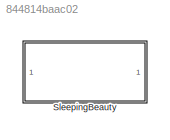
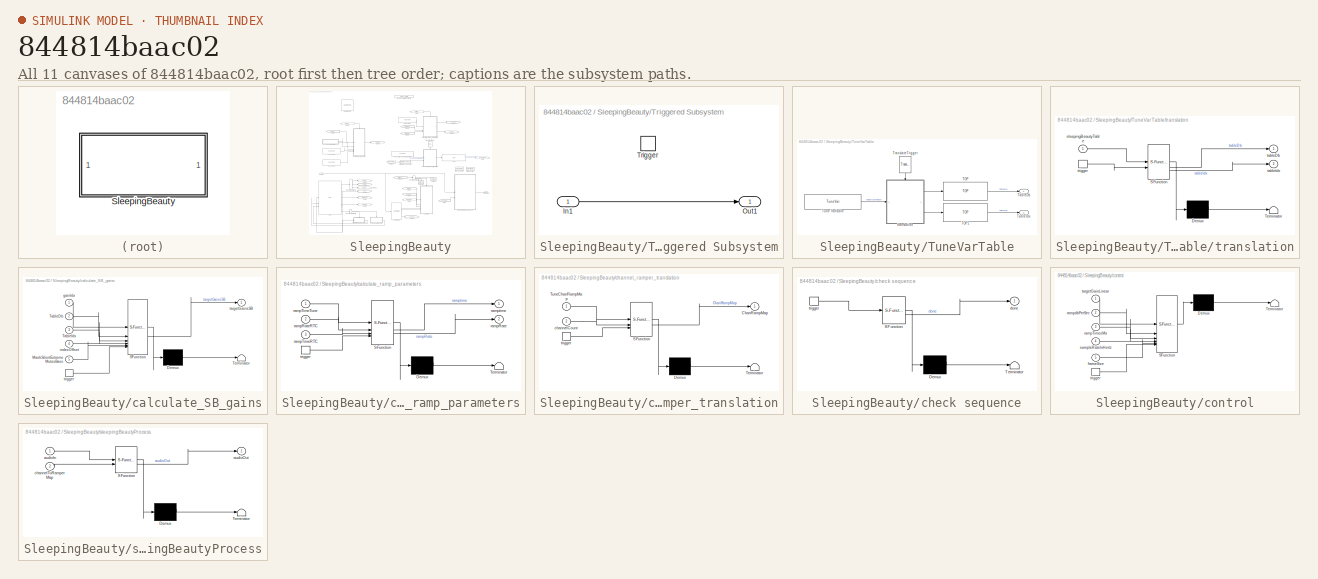
[diagram: thumbnail index - all 11 canvases of the model, root first then tree order]
MODEL slx_844814baac02
KIND library
CONFIG AbsTol = auto
CONFIG EnableMultiTasking = off
CONFIG FixedStep = auto
CONFIG MaxStep = auto
CONFIG MinStep = auto
CONFIG RelTol = 1e-3
CONFIG SampleTimeConstraint = Unconstrained
CONFIG SolverName = VariableStepAuto
CONFIG StartTime = 0.0
CONFIG StopTime = 10.0
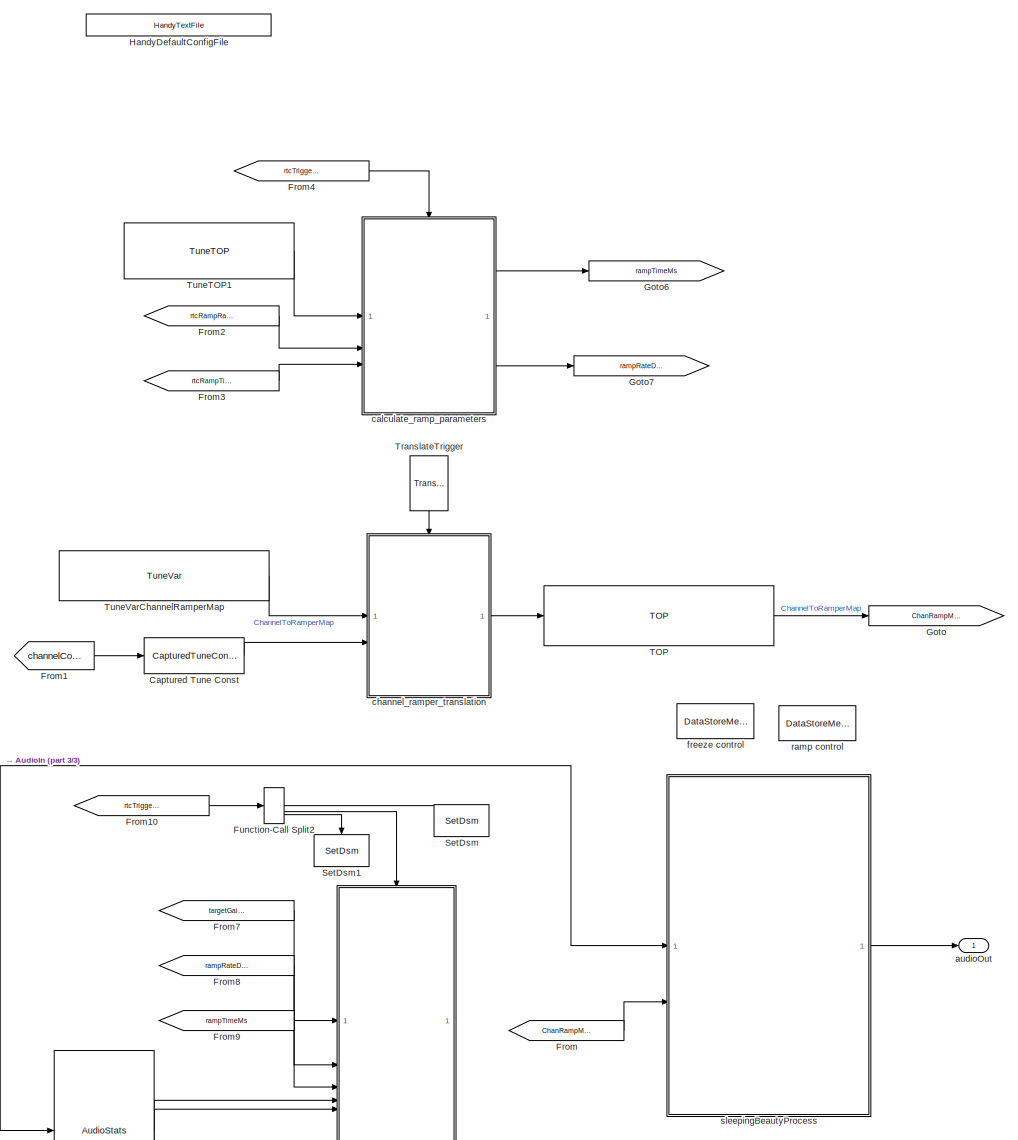
[diagram: SleepingBeauty - part 1/3, right side, full height]
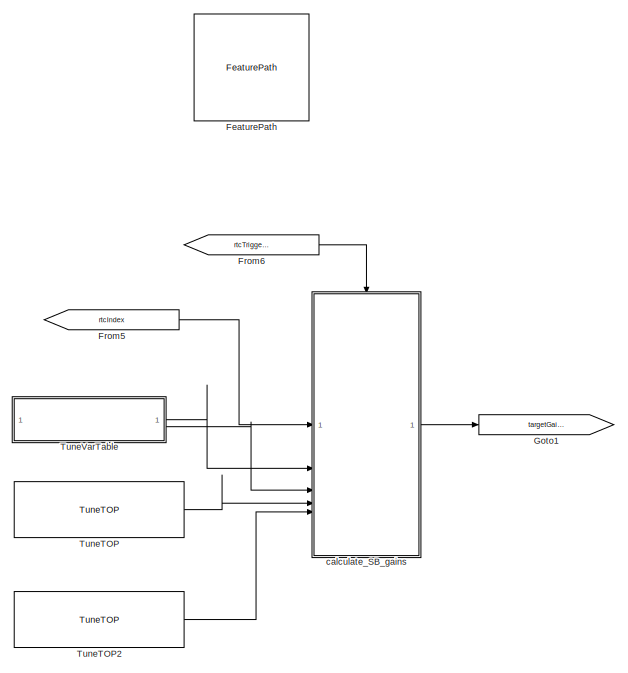
[diagram: SleepingBeauty - part 2/3, top left region]
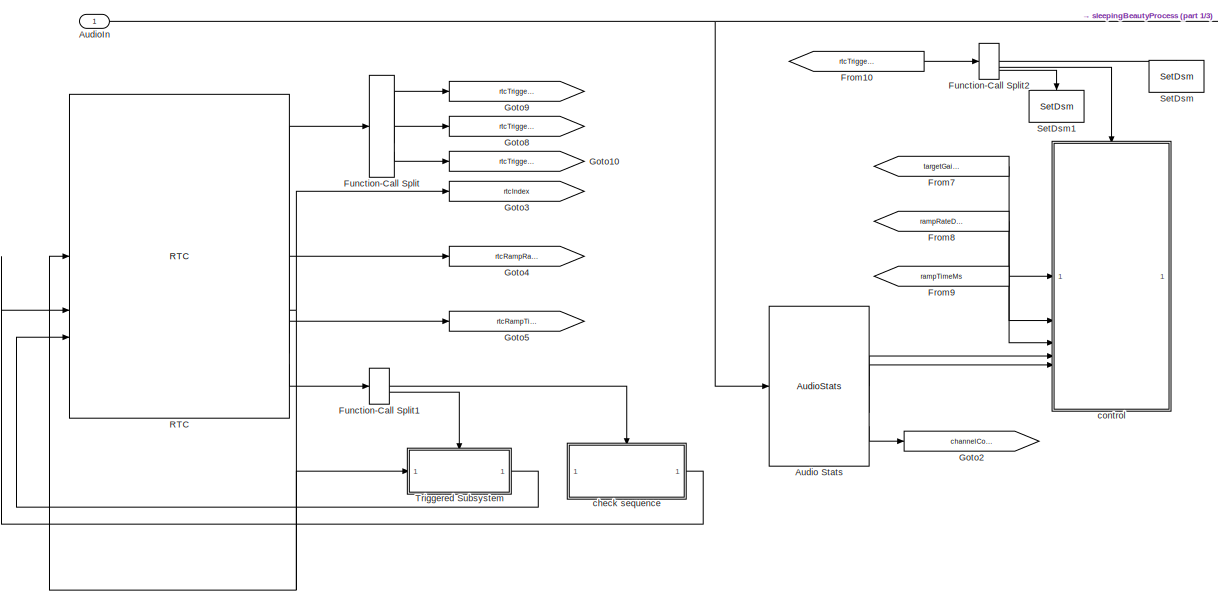
[diagram: SleepingBeauty - part 3/3, bottom center region]
BLOCK [SubSystem] SleepingBeauty
BLOCK [Reference] SleepingBeauty/Audio Stats  REF=AudioStats/AudioStats
  SourceBlock = AudioStats/AudioStats
  SourceProductName = Bose Talaria
  SourceType = Talaria Audio Statistics
BLOCK [Inport] SleepingBeauty/AudioIn
BLOCK [Reference] SleepingBeauty/Captured Tune Const  REF=TuneVar/CapturedTuneConst
  SourceBlock = TuneVar/CapturedTuneConst
  SourceProductName = Bose Talaria
  SourceType = Talaria Captured Constant
BLOCK [Reference] SleepingBeauty/FeaturePath  REF=FeaturePath/FeaturePath
  SourceBlock = FeaturePath/FeaturePath
  SourceProductName = Bose Talaria
  SourceType = Talaria Feature Path
BLOCK [From] SleepingBeauty/From
  GotoTag = ChanRampMap
BLOCK [From] SleepingBeauty/From1
  GotoTag = channelCount
BLOCK [From] SleepingBeauty/From10
  GotoTag = rtcTriggerControl
BLOCK [From] SleepingBeauty/From2
  GotoTag = rtcRampRateDbPerSecond
BLOCK [From] SleepingBeauty/From3
  GotoTag = rtcRampTimeMs
BLOCK [From] SleepingBeauty/From4
  GotoTag = rtcTriggerRamp
BLOCK [From] SleepingBeauty/From5
  GotoTag = rtcIndex
BLOCK [From] SleepingBeauty/From6
  GotoTag = rtcTriggerIndex
BLOCK [From] SleepingBeauty/From7
  GotoTag = targetGainsSB
BLOCK [From] SleepingBeauty/From8
  GotoTag = rampRateDbPerSecond
BLOCK [From] SleepingBeauty/From9
  GotoTag = rampTimeMs
BLOCK [FunctionCallSplit] SleepingBeauty/Function-Call Split
  IconShape = distinctive
  NumOutputPorts = 3
  OutputPortLayout = default
BLOCK [FunctionCallSplit] SleepingBeauty/Function-Call Split1
  IconShape = distinctive
  NumOutputPorts = 2
  OutputPortLayout = default
BLOCK [FunctionCallSplit] SleepingBeauty/Function-Call Split2
  IconShape = distinctive
  NumOutputPorts = 3
  OutputPortLayout = default
BLOCK [Goto] SleepingBeauty/Goto
  GotoTag = ChanRampMap
BLOCK [Goto] SleepingBeauty/Goto1
  GotoTag = targetGainsSB
BLOCK [Goto] SleepingBeauty/Goto10
  GotoTag = rtcTriggerControl
BLOCK [Goto] SleepingBeauty/Goto2
  GotoTag = channelCount
BLOCK [Goto] SleepingBeauty/Goto3
  GotoTag = rtcIndex
BLOCK [Goto] SleepingBeauty/Goto4
  GotoTag = rtcRampRateDbPerSecond
BLOCK [Goto] SleepingBeauty/Goto5
  GotoTag = rtcRampTimeMs
BLOCK [Goto] SleepingBeauty/Goto6
  GotoTag = rampTimeMs
BLOCK [Goto] SleepingBeauty/Goto7
  GotoTag = rampRateDbPerSecond
BLOCK [Goto] SleepingBeauty/Goto8
  GotoTag = rtcTriggerRamp
BLOCK [Goto] SleepingBeauty/Goto9
  GotoTag = rtcTriggerIndex
BLOCK [Reference] SleepingBeauty/HandyDefaultConfigFile  REF=HandyTextFile/HandyTextFile
  SourceBlock = HandyTextFile/HandyTextFile
  SourceProductName = Bose Talaria
  SourceType = Talaria Handy Text File
BLOCK [Reference] SleepingBeauty/RTC  REF=RTC/RTC
  SourceBlock = RTC/RTC
  SourceProductName = Bose Talaria
  SourceType = Talaria RTC Receive
BLOCK [Reference] SleepingBeauty/SetDsm  REF=SetDsm/SetDsm
  SourceBlock = SetDsm/SetDsm
  SourceProductName = Bose Talaria
  SourceType = Talaria Set DSM
BLOCK [Reference] SleepingBeauty/SetDsm1  REF=SetDsm/SetDsm
  SourceBlock = SetDsm/SetDsm
  SourceProductName = Bose Talaria
  SourceType = Talaria Set DSM
BLOCK [Reference] SleepingBeauty/TOP  REF=TOP/TOP
  SourceBlock = TOP/TOP
  SourceProductName = Bose Talaria
  SourceType = Talaria Target Overlay Parameter
BLOCK [Reference] SleepingBeauty/TranslateTrigger  REF=TuneVar/TranslateTrigger
  NameLocation = left
  SourceBlock = TuneVar/TranslateTrigger
  SourceProductName = Bose Talaria
  SourceType = Talaria Translate Trigger
BLOCK [SubSystem] SleepingBeauty/Triggered Subsystem
  TreatAsAtomicUnit = on
BLOCK [Inport] SleepingBeauty/Triggered Subsystem/In1
BLOCK [Outport] SleepingBeauty/Triggered Subsystem/Out1
BLOCK [TriggerPort] SleepingBeauty/Triggered Subsystem/Trigger
  StatesWhenEnabling = held
  TriggerType = function-call
  VariantControl = Variant
BLOCK [Reference] SleepingBeauty/TuneTOP  REF=TuneVar/TuneTOP
  Description = Defines the index at which the index is at the center, i.e. neither towards the left nor the right sides.
  SourceBlock = TuneVar/TuneTOP
  SourceProductName = Bose Talaria
  SourceType = Talaria Trivial Tune TOP
BLOCK [Reference] SleepingBeauty/TuneTOP1  REF=TuneVar/TuneTOP
  SourceBlock = TuneVar/TuneTOP
  SourceProductName = Bose Talaria
  SourceType = Talaria Trivial Tune TOP
BLOCK [Reference] SleepingBeauty/TuneTOP2  REF=TuneVar/TuneTOP
  Description = Defines the index at which the index is at the center, i.e. neither towards the left nor the right sides.
  SourceBlock = TuneVar/TuneTOP
  SourceProductName = Bose Talaria
  SourceType = Talaria Trivial Tune TOP
BLOCK [Reference] SleepingBeauty/TuneVarChannelRamperMap  REF=TuneVar/TuneVar
  SourceBlock = TuneVar/TuneVar
  SourceProductName = Bose Talaria
  SourceType = Talaria Tune Variable
BLOCK [SubSystem] SleepingBeauty/TuneVarTable
BLOCK [Reference] SleepingBeauty/TuneVarTable/TOP  REF=TOP/TOP
  SourceBlock = TOP/TOP
  SourceProductName = Bose Talaria
  SourceType = Talaria Target Overlay Parameter
BLOCK [Reference] SleepingBeauty/TuneVarTable/TOP1  REF=TOP/TOP
  SourceBlock = TOP/TOP
  SourceProductName = Bose Talaria
  SourceType = Talaria Target Overlay Parameter
BLOCK [Outport] SleepingBeauty/TuneVarTable/TableDb
BLOCK [Outport] SleepingBeauty/TuneVarTable/TableIdx
  Port = 2
BLOCK [Reference] SleepingBeauty/TuneVarTable/TranslateTrigger  REF=TuneVar/TranslateTrigger
  NameLocation = left
  SourceBlock = TuneVar/TranslateTrigger
  SourceProductName = Bose Talaria
  SourceType = Talaria Translate Trigger
BLOCK [Reference] SleepingBeauty/TuneVarTable/Tune Variable  REF=TuneVar/TuneVar
  SourceBlock = TuneVar/TuneVar
  SourceProductName = Bose Talaria
  SourceType = Talaria Tune Variable
BLOCK [SubSystem] SleepingBeauty/TuneVarTable/translation
  ErrorFcn = Stateflow.Translate.translate
  PermitHierarchicalResolution = ExplicitOnly
  SFBlockType = MATLAB Function
  TreatAsAtomicUnit = on
BLOCK [Demux] SleepingBeauty/TuneVarTable/translation/ Demux 
  Outputs = 1
BLOCK [S-Function] SleepingBeauty/TuneVarTable/translation/ SFunction 
  EnableBusSupport = off
  FunctionName = sf_sfun
  PortCounts = [2 3]
  SFcnIsStateOwnerBlock = off
  SFunctionDeploymentMode = off
  Tag = Stateflow S-Function 1
BLOCK [Terminator] SleepingBeauty/TuneVarTable/translation/ Terminator 
BLOCK [Inport] SleepingBeauty/TuneVarTable/translation/sleepingBeautyTable
BLOCK [Outport] SleepingBeauty/TuneVarTable/translation/tableDb
  VectorParamsAs1DForOutWhenUnconnected = off
BLOCK [Outport] SleepingBeauty/TuneVarTable/translation/tableIdx
  Port = 2
BLOCK [TriggerPort] SleepingBeauty/TuneVarTable/translation/trigger
  ShowOutputPort = on
  StatesWhenEnabling = held
  TriggerType = function-call
  VariantControl = Variant
BLOCK [Outport] SleepingBeauty/audioOut
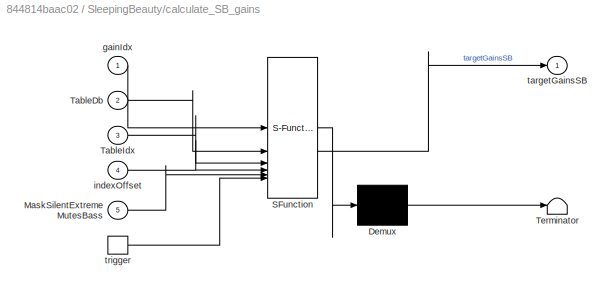
BLOCK [SubSystem] SleepingBeauty/calculate_SB_gains
  ErrorFcn = Stateflow.Translate.translate
  PermitHierarchicalResolution = ExplicitOnly
  SFBlockType = MATLAB Function
  TreatAsAtomicUnit = on
BLOCK [Demux] SleepingBeauty/calculate_SB_gains/ Demux 
  Outputs = 1
BLOCK [S-Function] SleepingBeauty/calculate_SB_gains/ SFunction 
  EnableBusSupport = off
  FunctionName = sf_sfun
  Parameters = MaskNumRampers
  PortCounts = [6 2]
  SFcnIsStateOwnerBlock = off
  SFunctionDeploymentMode = off
  Tag = Stateflow S-Function 3
BLOCK [Terminator] SleepingBeauty/calculate_SB_gains/ Terminator 
BLOCK [Inport] SleepingBeauty/calculate_SB_gains/MaskSilentExtremeMutesBass
  Port = 5
BLOCK [Inport] SleepingBeauty/calculate_SB_gains/TableDb
  Port = 2
BLOCK [Inport] SleepingBeauty/calculate_SB_gains/TableIdx
  Port = 3
BLOCK [Inport] SleepingBeauty/calculate_SB_gains/gainIdx
BLOCK [Inport] SleepingBeauty/calculate_SB_gains/indexOffset
  Port = 4
BLOCK [Outport] SleepingBeauty/calculate_SB_gains/targetGainsSB
BLOCK [TriggerPort] SleepingBeauty/calculate_SB_gains/trigger
  ShowOutputPort = on
  StatesWhenEnabling = held
  TriggerType = function-call
  VariantControl = (inherit)
BLOCK [SubSystem] SleepingBeauty/calculate_ramp_parameters
  ErrorFcn = Stateflow.Translate.translate
  PermitHierarchicalResolution = ExplicitOnly
  SFBlockType = MATLAB Function
  TreatAsAtomicUnit = on
BLOCK [Demux] SleepingBeauty/calculate_ramp_parameters/ Demux 
  Outputs = 1
BLOCK [S-Function] SleepingBeauty/calculate_ramp_parameters/ SFunction 
  EnableBusSupport = off
  FunctionName = sf_sfun
  Parameters = rampRateBounds,rampTimeBounds
  PortCounts = [4 3]
  SFcnIsStateOwnerBlock = off
  SFunctionDeploymentMode = off
  Tag = Stateflow S-Function 4
BLOCK [Terminator] SleepingBeauty/calculate_ramp_parameters/ Terminator 
BLOCK [Outport] SleepingBeauty/calculate_ramp_parameters/rampRate
  Port = 2
BLOCK [Inport] SleepingBeauty/calculate_ramp_parameters/rampRateRTC
  Port = 2
BLOCK [Inport] SleepingBeauty/calculate_ramp_parameters/rampTimeRTC
  Port = 3
BLOCK [Inport] SleepingBeauty/calculate_ramp_parameters/rampTimeTune
BLOCK [Outport] SleepingBeauty/calculate_ramp_parameters/ramptime
BLOCK [TriggerPort] SleepingBeauty/calculate_ramp_parameters/trigger
  ShowOutputPort = on
  StatesWhenEnabling = held
  TriggerType = function-call
  VariantControl = (inherit)
BLOCK [SubSystem] SleepingBeauty/channel_ramper_translation
  ErrorFcn = Stateflow.Translate.translate
  PermitHierarchicalResolution = ExplicitOnly
  SFBlockType = MATLAB Function
  TreatAsAtomicUnit = on
BLOCK [Demux] SleepingBeauty/channel_ramper_translation/ Demux 
  Outputs = 1
BLOCK [S-Function] SleepingBeauty/channel_ramper_translation/ SFunction 
  EnableBusSupport = off
  FunctionName = sf_sfun
  Parameters = MaskNumRampers
  PortCounts = [3 2]
  SFcnIsStateOwnerBlock = off
  SFunctionDeploymentMode = off
  Tag = Stateflow S-Function 8
BLOCK [Terminator] SleepingBeauty/channel_ramper_translation/ Terminator 
BLOCK [Outport] SleepingBeauty/channel_ramper_translation/ChanRampMap
  VectorParamsAs1DForOutWhenUnconnected = off
BLOCK [Inport] SleepingBeauty/channel_ramper_translation/TuneChanRampMap
BLOCK [Inport] SleepingBeauty/channel_ramper_translation/channelCount
  Port = 2
BLOCK [TriggerPort] SleepingBeauty/channel_ramper_translation/trigger
  ShowOutputPort = on
  StatesWhenEnabling = held
  TriggerType = function-call
  VariantControl = Variant
BLOCK [SubSystem] SleepingBeauty/check sequence
  ErrorFcn = Stateflow.Translate.translate
  PermitHierarchicalResolution = ExplicitOnly
  SFBlockType = MATLAB Function
  TreatAsAtomicUnit = on
BLOCK [Demux] SleepingBeauty/check sequence/ Demux 
  Outputs = 1
BLOCK [S-Function] SleepingBeauty/check sequence/ SFunction 
  EnableBusSupport = off
  FunctionName = sf_sfun
  Parameters = MaskNumRampers
  PortCounts = [1 2]
  SFcnIsStateOwnerBlock = off
  SFunctionDeploymentMode = off
  Tag = Stateflow S-Function 23
BLOCK [Terminator] SleepingBeauty/check sequence/ Terminator 
BLOCK [Outport] SleepingBeauty/check sequence/done
  VectorParamsAs1DForOutWhenUnconnected = off
BLOCK [TriggerPort] SleepingBeauty/check sequence/trigger
  ShowOutputPort = on
  StatesWhenEnabling = held
  TriggerType = function-call
  VariantControl = Variant
BLOCK [SubSystem] SleepingBeauty/control
  ErrorFcn = Stateflow.Translate.translate
  PermitHierarchicalResolution = ExplicitOnly
  SFBlockType = MATLAB Function
  TreatAsAtomicUnit = on
BLOCK [Demux] SleepingBeauty/control/ Demux 
  Outputs = 1
BLOCK [S-Function] SleepingBeauty/control/ SFunction 
  EnableBusSupport = off
  FunctionName = sf_sfun
  Parameters = MaskNumRampers
  PortCounts = [6 1]
  SFcnIsStateOwnerBlock = off
  SFunctionDeploymentMode = off
  Tag = Stateflow S-Function 5
BLOCK [Terminator] SleepingBeauty/control/ Terminator 
BLOCK [Inport] SleepingBeauty/control/frameSize
  Port = 5
BLOCK [Inport] SleepingBeauty/control/rampTimesMs
  Port = 3
BLOCK [Inport] SleepingBeauty/control/rampdbPerSec
  Port = 2
BLOCK [Inport] SleepingBeauty/control/sampleRateInHertz
  Port = 4
BLOCK [Inport] SleepingBeauty/control/targetGainLinear
BLOCK [TriggerPort] SleepingBeauty/control/trigger
  ShowOutputPort = on
  StatesWhenEnabling = held
  TriggerType = function-call
  VariantControl = (inherit)
BLOCK [DataStoreMemory] SleepingBeauty/freeze control
  DataStoreName = Freeze
  OutDataTypeStr = uint32
  ShowAdditionalParam = off
  SignalType = real
BLOCK [DataStoreMemory] SleepingBeauty/ramp control
  DataStoreName = Rampers
  InitialValue = Config.DlgRamperInit
  OutDataTypeStr = Bus: rgain_bus
  ReadBeforeWriteMsg = warning
  ShowAdditionalParam = off
  SignalType = real
  WriteAfterReadMsg = warning
  WriteAfterWriteMsg = warning
BLOCK [SubSystem] SleepingBeauty/sleepingBeautyProcess
  ErrorFcn = Stateflow.Translate.translate
  PermitHierarchicalResolution = ExplicitOnly
  SFBlockType = MATLAB Function
  TreatAsAtomicUnit = on
BLOCK [Demux] SleepingBeauty/sleepingBeautyProcess/ Demux 
  Outputs = 1
BLOCK [S-Function] SleepingBeauty/sleepingBeautyProcess/ SFunction 
  EnableBusSupport = off
  FunctionName = sf_sfun
  Parameters = MaskNumRampers
  PortCounts = [2 2]
  SFcnIsStateOwnerBlock = off
  SFunctionDeploymentMode = off
  Tag = Stateflow S-Function 2
BLOCK [Terminator] SleepingBeauty/sleepingBeautyProcess/ Terminator 
BLOCK [Inport] SleepingBeauty/sleepingBeautyProcess/audioIn
BLOCK [Outport] SleepingBeauty/sleepingBeautyProcess/audioOut
BLOCK [Inport] SleepingBeauty/sleepingBeautyProcess/channelToRamperMap
  Port = 2
LINE SleepingBeauty/Audio Stats:1 -> SleepingBeauty/control:4
LINE SleepingBeauty/Audio Stats:2 -> SleepingBeauty/control:5
LINE SleepingBeauty/Audio Stats:3 -> SleepingBeauty/Goto2:1
NET SleepingBeauty/AudioIn:1 -> SleepingBeauty/Audio Stats:1, SleepingBeauty/sleepingBeautyProcess:1
LINE SleepingBeauty/Captured Tune Const:1 -> SleepingBeauty/channel_ramper_translation:2
LINE SleepingBeauty/From10:1 -> SleepingBeauty/Function-Call Split2:1
LINE SleepingBeauty/From1:1 -> SleepingBeauty/Captured Tune Const:1
LINE SleepingBeauty/From2:1 -> SleepingBeauty/calculate_ramp_parameters:2
LINE SleepingBeauty/From3:1 -> SleepingBeauty/calculate_ramp_parameters:3
LINE SleepingBeauty/From4:1 -> SleepingBeauty/calculate_ramp_parameters:trigger
LINE SleepingBeauty/From5:1 -> SleepingBeauty/calculate_SB_gains:1
LINE SleepingBeauty/From6:1 -> SleepingBeauty/calculate_SB_gains:trigger
LINE SleepingBeauty/From7:1 -> SleepingBeauty/control:1
LINE SleepingBeauty/From8:1 -> SleepingBeauty/control:2
LINE SleepingBeauty/From9:1 -> SleepingBeauty/control:3
LINE SleepingBeauty/From:1 -> SleepingBeauty/sleepingBeautyProcess:2
LINE SleepingBeauty/Function-Call Split1:1 -> SleepingBeauty/check sequence:trigger
LINE SleepingBeauty/Function-Call Split1:2 -> SleepingBeauty/Triggered Subsystem:trigger
LINE SleepingBeauty/Function-Call Split2:1 -> SleepingBeauty/SetDsm:trigger
LINE SleepingBeauty/Function-Call Split2:2 -> SleepingBeauty/control:trigger
LINE SleepingBeauty/Function-Call Split2:3 -> SleepingBeauty/SetDsm1:trigger
LINE SleepingBeauty/Function-Call Split:1 -> SleepingBeauty/Goto9:1
LINE SleepingBeauty/Function-Call Split:2 -> SleepingBeauty/Goto8:1
LINE SleepingBeauty/Function-Call Split:3 -> SleepingBeauty/Goto10:1
LINE SleepingBeauty/RTC:1 -> SleepingBeauty/Function-Call Split:1
NET SleepingBeauty/RTC:2 -> SleepingBeauty/Goto3:1, SleepingBeauty/RTC:1, SleepingBeauty/Triggered Subsystem:1
LINE SleepingBeauty/RTC:3 -> SleepingBeauty/Goto4:1
LINE SleepingBeauty/RTC:4 -> SleepingBeauty/Goto5:1
LINE SleepingBeauty/RTC:5 -> SleepingBeauty/Function-Call Split1:1
LINE SleepingBeauty/TOP:1 -> SleepingBeauty/Goto:1
LINE SleepingBeauty/TranslateTrigger:1 -> SleepingBeauty/channel_ramper_translation:trigger
LINE SleepingBeauty/Triggered Subsystem/In1:1 -> SleepingBeauty/Triggered Subsystem/Out1:1
LINE SleepingBeauty/Triggered Subsystem:1 -> SleepingBeauty/RTC:3
LINE SleepingBeauty/TuneTOP1:1 -> SleepingBeauty/calculate_ramp_parameters:1
LINE SleepingBeauty/TuneTOP2:1 -> SleepingBeauty/calculate_SB_gains:5
LINE SleepingBeauty/TuneTOP:1 -> SleepingBeauty/calculate_SB_gains:4
LINE SleepingBeauty/TuneVarChannelRamperMap:1 -> SleepingBeauty/channel_ramper_translation:1
LINE SleepingBeauty/TuneVarTable/TOP1:1 -> SleepingBeauty/TuneVarTable/TableIdx:1
LINE SleepingBeauty/TuneVarTable/TOP:1 -> SleepingBeauty/TuneVarTable/TableDb:1
LINE SleepingBeauty/TuneVarTable/TranslateTrigger:1 -> SleepingBeauty/TuneVarTable/translation:trigger
LINE SleepingBeauty/TuneVarTable/Tune Variable:1 -> SleepingBeauty/TuneVarTable/translation:1
LINE SleepingBeauty/TuneVarTable/translation:1 -> SleepingBeauty/TuneVarTable/TOP:1
LINE SleepingBeauty/TuneVarTable/translation:2 -> SleepingBeauty/TuneVarTable/TOP1:1
LINE SleepingBeauty/TuneVarTable:1 -> SleepingBeauty/calculate_SB_gains:2
LINE SleepingBeauty/TuneVarTable:2 -> SleepingBeauty/calculate_SB_gains:3
LINE SleepingBeauty/calculate_SB_gains:1 -> SleepingBeauty/Goto1:1
LINE SleepingBeauty/calculate_ramp_parameters:1 -> SleepingBeauty/Goto6:1
LINE SleepingBeauty/calculate_ramp_parameters:2 -> SleepingBeauty/Goto7:1
LINE SleepingBeauty/channel_ramper_translation:1 -> SleepingBeauty/TOP:1
LINE SleepingBeauty/check sequence:1 -> SleepingBeauty/RTC:2
LINE SleepingBeauty/sleepingBeautyProcess:1 -> SleepingBeauty/audioOut:1
note: NET lines group one-source signal fan-out (src -> all destinations, sorted); 1:1 wires keep LINE
CHART SleepingBeauty/TuneVarTable/translation states=1 transitions=1
  STATE_LABEL 'eML_blk_kernel()'
  STATE_LABEL "SCRIPT:\nfunction [tableDb, tableIdx]  = fcn(sleepingBeautyTable)\n%#codegen\n\n% Set up the size and datatype of our TOP outputs:\nmaxTableSize = numel(sleepingBeautyTable.Value) / 2;\nidxType = 'uint8';\nidxStorageType = 'uint32';\ndbType = 'single';\ntableIdx = zeros(1,maxTableSize,idxStorageType);\ntableDb = zeros(1,maxTableSize,dbType);\n\n% separate the pairs into their index and value components\ngivenP...<+1033ch>"
CHART SleepingBeauty/sleepingBeautyProcess states=1 transitions=1
  STATE_LABEL 'eML_blk_kernel()'
  STATE_LABEL 'SCRIPT:\nfunction audioOut  = sleepingBeautyProcess(audioIn, channelToRamperMap, ... % inputs\n    MaskNumRampers)  % parameters\n\n% Applies the Left and Right gains to the respective channels via multiple\n%   rampers\n% Inputs:\n%  audioIn: Input audio\n%  channelToRamperMap: Input channels mapped to their corresponding ramper.\n%  MaskNumRampers: Number of rampers (set in the Mask file) = 4\n\n% Data Sto...<+1710ch>'
CHART SleepingBeauty/calculate_SB_gains states=1 transitions=1
  STATE_LABEL 'eML_blk_kernel()'
  STATE_LABEL 'SCRIPT:\nfunction targetGainsSB = Calculate_SB_Gains(gainIdx, TableDb,...\n    TableIdx, indexOffset,MaskNumRampers, MaskSilentExtremeMutesBass)\n\n% Computes the gains for the L, R, C Mono channel groups.  \n% Based on the gainIdx, we will:\n%     1. Set specific speakers to mute, if the gain index is \n%     extreme (i.e. either 0 or 255)\n%     2. Begin a gain-tapering function on the speakers, if the\n...<+2134ch>'
CHART SleepingBeauty/calculate_ramp_parameters states=1 transitions=1
  STATE_LABEL 'eML_blk_kernel()'
  STATE_LABEL 'SCRIPT:\nfunction [ramptime, rampRate]  = calculate_ramp_parameters(...\n    rampTimeTune, rampRateRTC,rampTimeRTC, ... % inputs\n    rampTimeBounds, rampRateBounds) % parameters\n\n% Ramp time and rate are provided to the block through SB RTC messages\n% However in case neither of them are provided, the block will use the \n% default ramp time given in the tune variables.\n\n    ramptime = single(rampTime...<+381ch>'
CHART SleepingBeauty/control states=1 transitions=1
  STATE_LABEL 'eML_blk_kernel()'
  STATE_LABEL "SCRIPT:\nfunction control(...\n     targetGainLinear, rampdbPerSec, rampTimesMs, sampleRateInHertz, ...\n     frameSize, ... % inputs\n     MaskNumRampers) % parameters\n%#codegen\n% CONTROL LOGIC:\n% Shift of 'balance' between the 'Right' and 'Left' channel groups is\n% achieved by multiplying the corresponding 'cut' or 'boost' gain. As the\n% index increases from 0, the balance shifts from left to right....<+3608ch>"
CHART SleepingBeauty/channel_ramper_translation states=1 transitions=1
  STATE_LABEL 'eML_blk_kernel()'
  STATE_LABEL "SCRIPT:\nfunction ChanRampMap = fcn(TuneChanRampMap, channelCount, ... %Inputs\n    MaskNumRampers) % Parameters\n\n% Function that verifies channel-to-ramper map is valid\n% Takes channelRamperMap and channelCount as inputs, and \n% number of rampers as a parameter\nargName = 'SleepingBeauty';\n\n% Ensure each channel is present in the map\ninputMapWidth = numel(TuneChanRampMap.Value);\nif (inputMapWidth ~=...<+1107ch>"
CHART SleepingBeauty/check sequence states=1 transitions=1
  STATE_LABEL 'eML_blk_kernel()'
  STATE_LABEL 'SCRIPT:\nfunction done = GetCompletedSequence(MaskNumRampers)\n%  Function that checks whether all channels have completed their ramp to \n% target gain.\n% If so, send out TRUE to RTC\n\nglobal Rampers;\n\n% Assume the work is complete until proven otherwise\ndone = true;\n\nfor i=1:MaskNumRampers\n   if (Rampers(i).targetGain ~= Rampers(i).currentGain)\n       done = false; % just proved otherwise\n       bre...<+16ch>'
CHART  states=0 transitions=0
CHART  states=0 transitions=0
CHART  states=0 transitions=0
CHART  states=0 transitions=0
CHART  states=0 transitions=0
CHART  states=0 transitions=0
CHART  states=0 transitions=0
